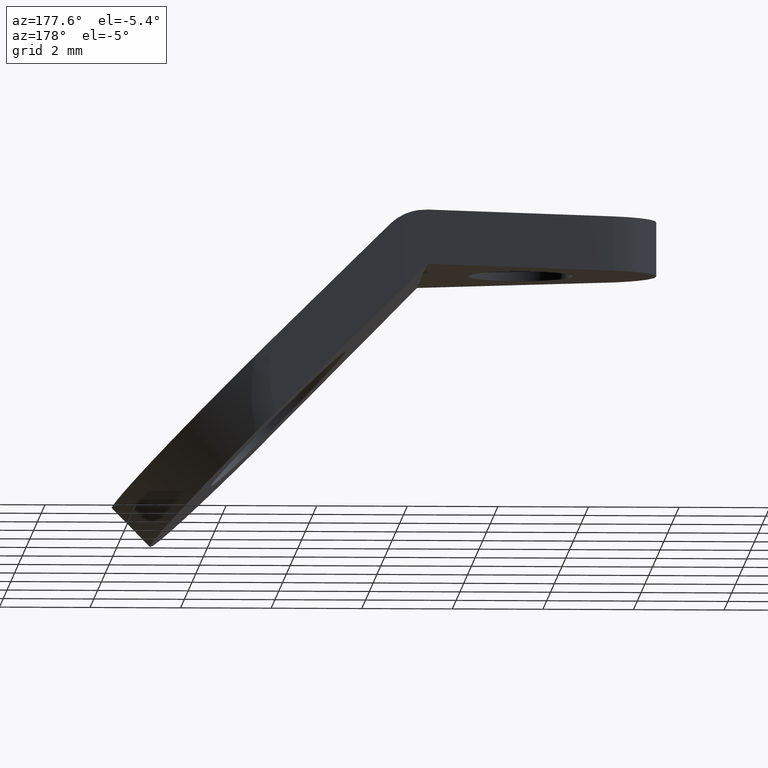
[diagram: clean part render]
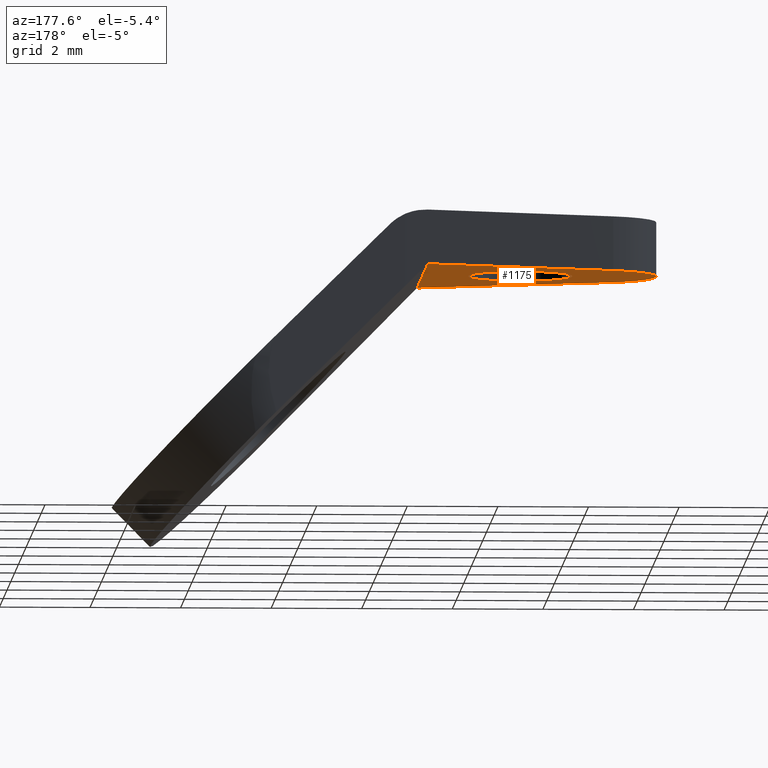
[diagram: same view with one face highlighted and labeled with its STEP entity id]
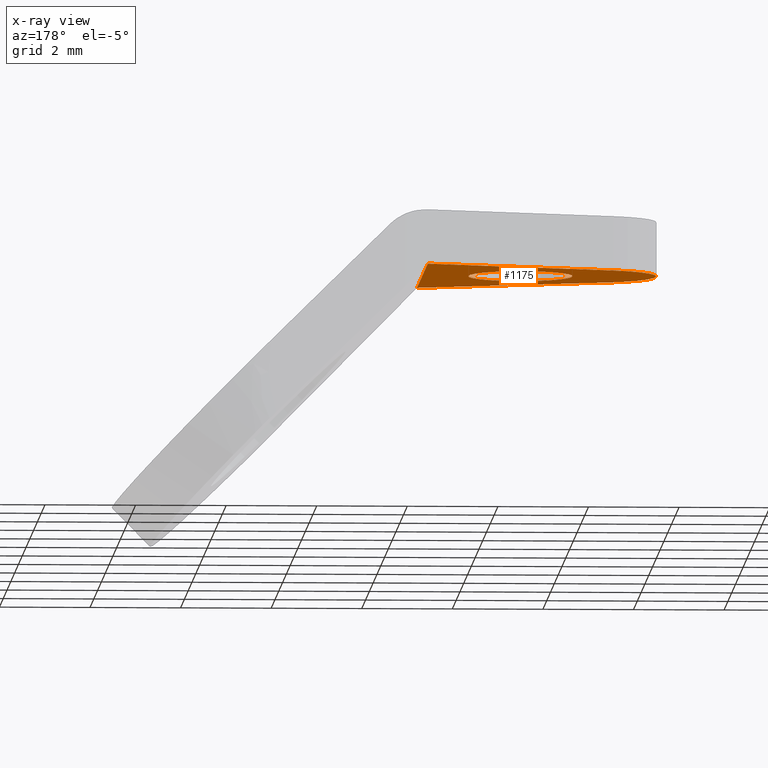
[diagram: x-ray of the same camera — body ghosted, the highlighted face saturated]
A machine part, auxiliary view. The second image highlights one B-rep face of the part: STEP entity #1175.
The next image is the same camera in x-ray: the body ghosted, the highlighted face saturated — about 0% of this face is hidden behind the body in this view.
In plain terms, the highlighted face is a freeform B-spline surface patch.
Its self-contained STEP definition (entity closure, byte-faithful):
#369=CARTESIAN_POINT('',(3.834180503832417,0.791607751304693,-1.199999999999980));
#370=VERTEX_POINT('',#369);
#376=CARTESIAN_POINT('',(4.150000000000000,0.0,-1.199999999999980));
#377=VERTEX_POINT('',#376);
#378=CARTESIAN_POINT('',(4.150000000000000,0.0,-1.199999999999980));
#379=CARTESIAN_POINT('',(4.150041179042349,0.109143095378135,-1.199999999999980));
#380=CARTESIAN_POINT('',(4.125864477503170,0.277370279307372,-1.199999999999977));
#381=CARTESIAN_POINT('',(4.046737304727824,0.486384003738563,-1.199999999999982));
#382=CARTESIAN_POINT('',(3.957701196718726,0.645526566593393,-1.199999999999978));
#383=CARTESIAN_POINT('',(3.881138719804661,0.742133393169809,-1.199999999999981));
#384=CARTESIAN_POINT('',(3.834180503832417,0.791607751304693,-1.199999999999980));
#385=B_SPLINE_CURVE_WITH_KNOTS('',3,(#378,#379,#380,#381,#382,#383,#384),.UNSPECIFIED.,.F.,.U.,(4,1,1,1,4),(1.860482E-009,0.327414858045688,0.504762820903208,0.668471890999660,0.873106076355171),.UNSPECIFIED.);
#386=EDGE_CURVE('',#377,#370,#385,.T.);
#388=CARTESIAN_POINT('',(3.000000095957994,-1.149999999999996,-1.199999999999980));
#389=VERTEX_POINT('',#388);
#390=CARTESIAN_POINT('',(3.000000095957994,-1.149999999999996,-1.199999999999980));
#391=CARTESIAN_POINT('',(3.084676736940991,-1.150015389845509,-1.199999999999977));
#392=CARTESIAN_POINT('',(3.230500345942492,-1.133818323438868,-1.199999999999988));
#393=CARTESIAN_POINT('',(3.419813912129487,-1.075113972273720,-1.199999999999974));
#394=CARTESIAN_POINT('',(3.594062878223517,-0.991398826243255,-1.199999999999986));
#395=CARTESIAN_POINT('',(3.755772611346387,-0.876019656899940,-1.199999999999991));
#396=CARTESIAN_POINT('',(3.892507548240860,-0.732390550343694,-1.199999999999969));
#397=CARTESIAN_POINT('',(3.984003456334133,-0.600759882569647,-1.199999999999989));
#398=CARTESIAN_POINT('',(4.058651018011729,-0.459027276261695,-1.199999999999964));
#399=CARTESIAN_POINT('',(4.128648193416655,-0.263423018173053,-1.199999999999990));
#400=CARTESIAN_POINT('',(4.150029215653207,-0.098791068567639,-1.199999999999980));
#401=CARTESIAN_POINT('',(4.150000000000000,0.0,-1.199999999999980));
#402=B_SPLINE_CURVE_WITH_KNOTS('',3,(#390,#391,#392,#393,#394,#395,#396,#397,#398,#399,#400,#401),.UNSPECIFIED.,.F.,.U.,(4,1,1,1,1,1,1,1,1,4),(5.024718E-009,0.254027866407136,0.437494011310621,0.592734998670223,0.832653790514736,1.030224899312096,1.185466288636504,1.312481740666482,1.510061020858998,1.806427056222610),.UNSPECIFIED.);
#403=EDGE_CURVE('',#389,#377,#402,.T.);
#405=CARTESIAN_POINT('',(1.850000000000000,0.0,-1.199999999999980));
#406=VERTEX_POINT('',#405);
#407=CARTESIAN_POINT('',(1.850000000000000,0.0,-1.199999999999980));
#408=CARTESIAN_POINT('',(1.849995733737299,-0.065858072393993,-1.199999999999984));
#409=CARTESIAN_POINT('',(1.861747765889902,-0.202279214433078,-1.199999999999970));
#410=CARTESIAN_POINT('',(1.913490659430036,-0.393828322367740,-1.199999999999982));
#411=CARTESIAN_POINT('',(1.999128393121927,-0.577801947036770,-1.199999999999982));
#412=CARTESIAN_POINT('',(2.117767285601492,-0.748482472238805,-1.199999999999976));
#413=CARTESIAN_POINT('',(2.259864293263415,-0.887127909800027,-1.199999999999981));
#414=CARTESIAN_POINT('',(2.399240345833364,-0.984003244344044,-1.199999999999982));
#415=CARTESIAN_POINT('',(2.540972832545994,-1.058651287191978,-1.199999999999974));
#416=CARTESIAN_POINT('',(2.736577365121380,-1.128646108393714,-1.200000000000002));
#417=CARTESIAN_POINT('',(2.901208784982607,-1.150031352093001,-1.199999999999960));
#418=CARTESIAN_POINT('',(3.000000095957994,-1.149999999999996,-1.199999999999980));
#419=B_SPLINE_CURVE_WITH_KNOTS('',3,(#407,#408,#409,#410,#411,#412,#413,#414,#415,#416,#417,#418),.UNSPECIFIED.,.F.,.U.,(4,1,1,1,1,1,1,1,1,4),(4.992136E-009,0.197575024575579,0.409268626623058,0.592735034149310,0.804428561336172,1.030224961049210,1.185466359655716,1.312481819270492,1.510061111307852,1.806427164390308),.UNSPECIFIED.);
#420=EDGE_CURVE('',#406,#389,#419,.T.);
#422=CARTESIAN_POINT('',(2.257396645068195,0.878089011236345,-1.199999999999980));
#423=VERTEX_POINT('',#422);
#424=CARTESIAN_POINT('',(2.257396645068195,0.878089011236345,-1.199999999999980));
#425=CARTESIAN_POINT('',(2.181883247451196,0.814261692237525,-1.199999999999981));
#426=CARTESIAN_POINT('',(2.079331976542018,0.701849605720580,-1.199999999999977));
#427=CARTESIAN_POINT('',(1.968842865710617,0.518754804333681,-1.199999999999984));
#428=CARTESIAN_POINT('',(1.908761001808731,0.374106287659650,-1.199999999999974));
#429=CARTESIAN_POINT('',(1.862236691786223,0.197738380726222,-1.199999999999983));
#430=CARTESIAN_POINT('',(1.849987245462916,0.078057744320814,-1.199999999999979));
#431=CARTESIAN_POINT('',(1.850000000000000,0.0,-1.199999999999980));
#432=B_SPLINE_CURVE_WITH_KNOTS('',3,(#424,#425,#426,#427,#428,#429,#430,#431),.UNSPECIFIED.,.F.,.U.,(4,1,1,1,1,4),(8.339613E-010,0.296616611308585,0.452730738969260,0.640067260002258,0.764958567397399,0.999129553464286),.UNSPECIFIED.);
#433=EDGE_CURVE('',#423,#406,#432,.T.);
#470=CARTESIAN_POINT('',(2.999999904042019,1.149999999999996,-1.199999999999980));
#471=VERTEX_POINT('',#470);
#472=CARTESIAN_POINT('',(2.999999904042019,1.149999999999996,-1.199999999999980));
#473=CARTESIAN_POINT('',(2.911700275186077,1.150019276473422,-1.199999999999979));
#474=CARTESIAN_POINT('',(2.764547030237457,1.132963520281560,-1.199999999999986));
#475=CARTESIAN_POINT('',(2.575620318481065,1.073039114225932,-1.199999999999973));
#476=CARTESIAN_POINT('',(2.412443438866464,0.994273439433233,-1.199999999999994));
#477=CARTESIAN_POINT('',(2.311970604702081,0.924252242938928,-1.199999999999972));
#478=CARTESIAN_POINT('',(2.257396645068195,0.878089011236345,-1.199999999999980));
#479=B_SPLINE_CURVE_WITH_KNOTS('',3,(#472,#473,#474,#475,#476,#477,#478),.UNSPECIFIED.,.F.,.U.,(4,1,1,1,4),(1.914208E-009,0.264894770406063,0.441489183177922,0.592859301963309,0.807297862850112),.UNSPECIFIED.);
#480=EDGE_CURVE('',#471,#423,#479,.T.);
#482=CARTESIAN_POINT('',(3.834180503832417,0.791607751304693,-1.199999999999980));
#483=CARTESIAN_POINT('',(3.777306334631034,0.851561007629501,-1.199999999999981));
#484=CARTESIAN_POINT('',(3.661736101545470,0.949624332195922,-1.199999999999978));
#485=CARTESIAN_POINT('',(3.461249741286491,1.061050936884225,-1.199999999999981));
#486=CARTESIAN_POINT('',(3.243045714826291,1.132634455820479,-1.199999999999978));
#487=CARTESIAN_POINT('',(3.082638364330259,1.150014275318802,-1.199999999999980));
#488=CARTESIAN_POINT('',(2.999999904042019,1.149999999999996,-1.199999999999980));
#489=B_SPLINE_CURVE_WITH_KNOTS('',3,(#482,#483,#484,#485,#486,#487,#488),.UNSPECIFIED.,.F.,.U.,(4,1,1,1,4),(1.417833E-009,0.247913460418974,0.452077974795628,0.685407689857293,0.933321148858767),.UNSPECIFIED.);
#490=EDGE_CURVE('',#370,#471,#489,.T.);
#1052=CARTESIAN_POINT('',(5.163961000000000,2.846130806536745,-1.199999999999988));
#1053=VERTEX_POINT('',#1052);
#1059=CARTESIAN_POINT('',(1.012229000000000,1.418478000000022,-1.199999999999980));
#1060=VERTEX_POINT('',#1059);
#1061=CARTESIAN_POINT('',(5.163961000000000,2.846130806536745,-1.199999999999988));
#1062=CARTESIAN_POINT('',(1.012229000000000,1.418478000000022,-1.199999999999980));
#1063=QUASI_UNIFORM_CURVE('',1,(#1061,#1062),.UNSPECIFIED.,.F.,.U.);
#1064=EDGE_CURVE('',#1053,#1060,#1063,.T.);
#1080=CARTESIAN_POINT('',(5.163961000000060,-2.846130806536750,-1.200000000000000));
#1081=VERTEX_POINT('',#1080);
#1090=CARTESIAN_POINT('',(1.012229000000000,-1.418478000000000,-1.199999999999980));
#1091=VERTEX_POINT('',#1090);
#1097=CARTESIAN_POINT('',(1.012229000000000,-1.418478000000000,-1.199999999999980));
#1098=CARTESIAN_POINT('',(5.163961000000060,-2.846130806536750,-1.200000000000000));
#1099=QUASI_UNIFORM_CURVE('',1,(#1097,#1098),.UNSPECIFIED.,.F.,.U.);
#1100=EDGE_CURVE('',#1091,#1081,#1099,.T.);
#1125=CARTESIAN_POINT('',(1.012229000000000,1.418478000000022,-1.199999999999980));
#1126=CARTESIAN_POINT('',(0.952703652222031,1.398010341415028,-1.199999999999981));
#1127=CARTESIAN_POINT('',(0.822791793713634,1.343978713042854,-1.199999999999980));
#1128=CARTESIAN_POINT('',(0.630548703714350,1.230163824158924,-1.199999999999977));
#1129=CARTESIAN_POINT('',(0.462535850634432,1.090254167571809,-1.199999999999984));
#1130=CARTESIAN_POINT('',(0.325775986936535,0.939266887725160,-1.199999999999976));
#1131=CARTESIAN_POINT('',(0.222209149291856,0.792638145924850,-1.199999999999988));
#1132=CARTESIAN_POINT('',(0.125632059542442,0.613270248755918,-1.199999999999971));
#1133=CARTESIAN_POINT('',(0.054993470131137,0.421826765724308,-1.199999999999979));
#1134=CARTESIAN_POINT('',(0.006854294649399,0.193972433503912,-1.199999999999982));
#1135=CARTESIAN_POINT('',(-0.005002852639508,-0.009824709319446,-1.199999999999979));
#1136=CARTESIAN_POINT('',(0.012941966420178,-0.227292588135464,-1.199999999999980));
#1137=CARTESIAN_POINT('',(0.058122629985236,-0.436158996926514,-1.199999999999980));
#1138=CARTESIAN_POINT('',(0.143076055612398,-0.653348213598566,-1.199999999999981));
#1139=CARTESIAN_POINT('',(0.267775758842645,-0.867260833093914,-1.199999999999980));
#1140=CARTESIAN_POINT('',(0.407471724933137,-1.035687378355000,-1.199999999999980));
#1141=CARTESIAN_POINT('',(0.566025832930072,-1.178455263140156,-1.199999999999979));
#1142=CARTESIAN_POINT('',(0.752718414270709,-1.309519043441035,-1.199999999999988));
#1143=CARTESIAN_POINT('',(0.911484487266233,-1.383852431318808,-1.199999999999966));
#1144=CARTESIAN_POINT('',(1.012229000000000,-1.418478000000000,-1.199999999999980));
#1145=B_SPLINE_CURVE_WITH_KNOTS('',3,(#1125,#1126,#1127,#1128,#1129,#1130,#1131,#1132,#1133,#1134,#1135,#1136,#1137,#1138,#1139,#1140,#1141,#1142,#1143,#1144),.UNSPECIFIED.,.F.,.U.,(4,1,1,1,1,1,1,1,1,1,1,1,1,1,1,1,1,4),(0.000000012032656,0.188838855707386,0.421265428939369,0.668219439203838,0.842539738525434,1.031385964403177,1.205704665535302,1.452655805103933,1.641500714309574,1.902970982504236,2.062769405486219,2.295191050466457,2.542145539333160,2.760043984014925,3.036050641452924,3.195843934022930,3.399212537649915,3.718796031456741),.UNSPECIFIED.);
#1146=EDGE_CURVE('',#1060,#1091,#1145,.T.);
#1152=CARTESIAN_POINT('',(-0.257939656069720,3.130459316511938,-1.200000000000000));
#1153=CARTESIAN_POINT('',(5.421900584680050,3.130459316511938,-1.200000000000000));
#1154=CARTESIAN_POINT('',(-0.257939656069720,-3.130459418297512,-1.200000000000000));
#1155=CARTESIAN_POINT('',(5.421900584680050,-3.130459418297512,-1.200000000000000));
#1156=B_SPLINE_SURFACE_WITH_KNOTS('',1,1,((#1152,#1154),(#1153,#1155)),.UNSPECIFIED.,.F.,.F.,.U.,(2,2),(2,2),(0.0,5.679840240749770),(0.0,6.260918734809450),.UNSPECIFIED.);
#1157=CARTESIAN_POINT('',(5.163961000000060,-2.846130806536750,-1.200000000000000));
#1158=CARTESIAN_POINT('',(5.163961000000000,2.846130806536745,-1.199999999999988));
#1159=QUASI_UNIFORM_CURVE('',1,(#1157,#1158),.UNSPECIFIED.,.F.,.U.);
#1160=EDGE_CURVE('',#1081,#1053,#1159,.T.);
#1161=ORIENTED_EDGE('',*,*,#1160,.F.);
#1162=ORIENTED_EDGE('',*,*,#1100,.F.);
#1163=ORIENTED_EDGE('',*,*,#1146,.F.);
#1164=ORIENTED_EDGE('',*,*,#1064,.F.);
#1165=EDGE_LOOP('',(#1161,#1162,#1163,#1164));
#1166=FACE_OUTER_BOUND('',#1165,.T.);
#1167=ORIENTED_EDGE('',*,*,#420,.T.);
#1168=ORIENTED_EDGE('',*,*,#403,.T.);
#1169=ORIENTED_EDGE('',*,*,#386,.T.);
#1170=ORIENTED_EDGE('',*,*,#490,.T.);
#1171=ORIENTED_EDGE('',*,*,#480,.T.);
#1172=ORIENTED_EDGE('',*,*,#433,.T.);
#1173=EDGE_LOOP('',(#1167,#1168,#1169,#1170,#1171,#1172));
#1174=FACE_BOUND('',#1173,.T.);
#1175=ADVANCED_FACE('',(#1166,#1174),#1156,.T.);